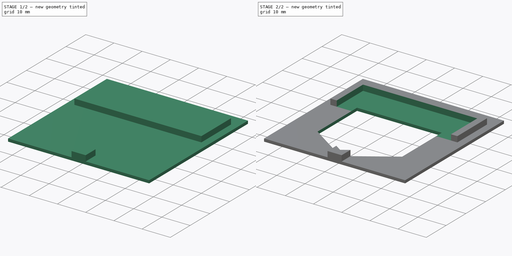
[diagram: build sequence overview — one tinted view per stage of 2, left to right]
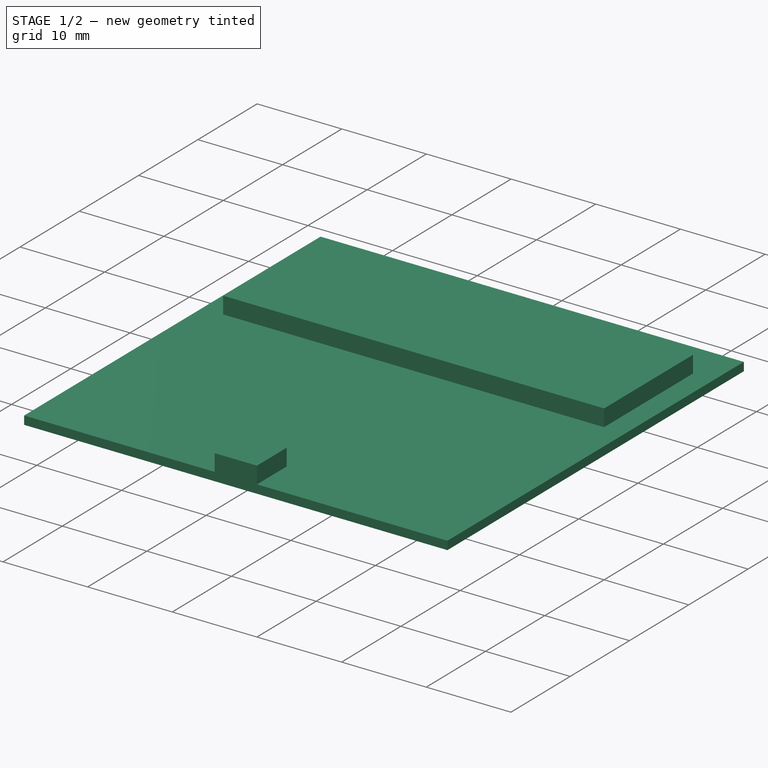
[diagram: stage 1 of 2 — iso view after this stage's code; geometry added in this stage tinted green]
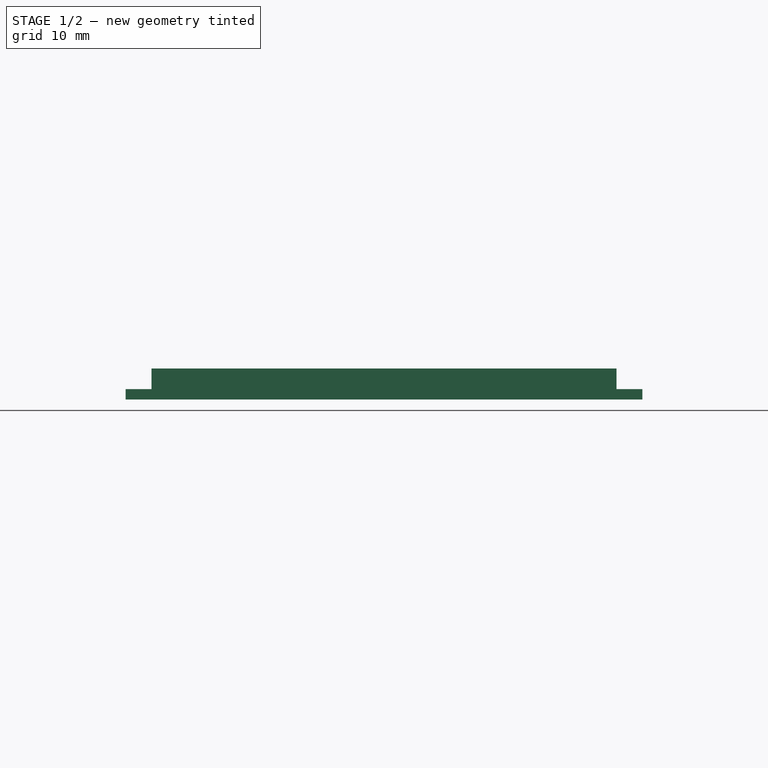
[diagram: stage 1 of 2 — front view after this stage's code; geometry added in this stage tinted green]
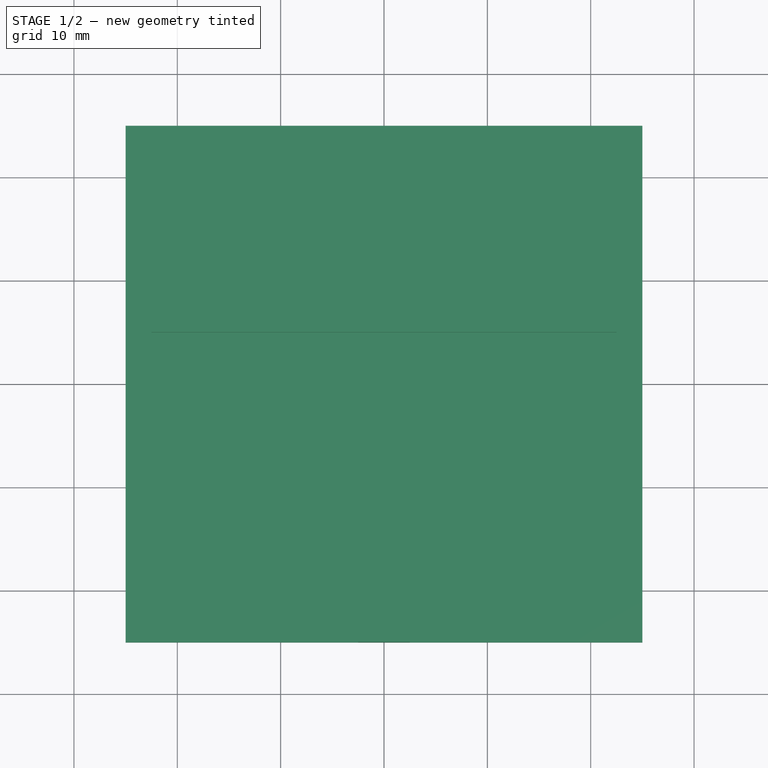
[diagram: stage 1 of 2 — top view after this stage's code; geometry added in this stage tinted green]
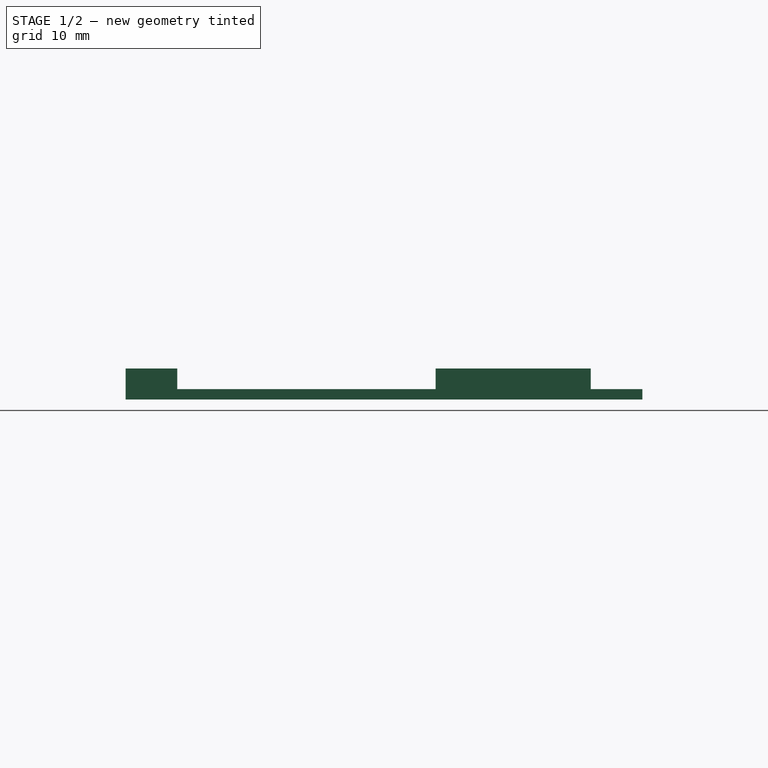
[diagram: stage 1 of 2 — right view after this stage's code; geometry added in this stage tinted green]
FCSTD DOCUMENT  (FreeCAD 0.20R)
Label: sablona
License: All rights reserved
LicenseURL: http://en.wikipedia.org/wiki/All_rights_reserved
objects: Sketcher::SketchObject×4, PartDesign::Pad×2, PartDesign::Pocket×2, PartDesign::Body×1
note: 13 computed .brp shape members not serialized (recipe doc carries the construction recipe); baked Part::Feature solids carry a one-line shape summary decoded from their .brp

FEATURE [Sketcher::SketchObject] Sketch
  FullyConstrained = true
  MapMode = 5
  Support = -> [XY_Plane]
  sketch-geometry (4):
    g0: LineSegment StartX=-25 StartY=25 StartZ=0 EndX=25 EndY=25 EndZ=0
    g1: LineSegment StartX=25 StartY=25 StartZ=0 EndX=25 EndY=-25 EndZ=0
    g2: LineSegment StartX=25 StartY=-25 StartZ=0 EndX=-25 EndY=-25 EndZ=0
    g3: LineSegment StartX=-25 StartY=-25 StartZ=0 EndX=-25 EndY=25 EndZ=0
  constraints (10):
    c: Coincident(g0,g1)
    c: Coincident(g1,g2)
    c: Coincident(g2,g3)
    c: Coincident(g3,g0)
    c: Horizontal(g2)
    c: Vertical(g3)
    c: DistanceX(g0,g0) = 50
    c: DistanceY(g1,g1) = 50
    c: Symmetric(g0,g0,g-2)
    c: Symmetric(g0,g1,g-1)
FEATURE [PartDesign::Pad] Pad
  Direction = (0,0,1)
  Length = 1
  Length2 = 10
  Profile = -> Sketch
  ReferenceAxis = -> Sketch [N_Axis]
  Type = 0
FEATURE [Sketcher::SketchObject] Sketch001
  ExternalGeometry = -> [Pad]
  FullyConstrained = true
  MapMode = 5
  Placement = pos=(0,0,1) rot=(0,0,1;0rad)
  Support = -> [Pad]
  sketch-geometry (8):
    g0: LineSegment StartX=-2.5 StartY=-20 StartZ=0 EndX=2.5 EndY=-20 EndZ=0
    g1: LineSegment StartX=2.5 StartY=-20 StartZ=0 EndX=2.5 EndY=-25 EndZ=0
    g2: LineSegment StartX=2.5 StartY=-25 StartZ=0 EndX=-2.5 EndY=-25 EndZ=0
    g3: LineSegment StartX=-2.5 StartY=-25 StartZ=0 EndX=-2.5 EndY=-20 EndZ=0
    g4: LineSegment StartX=-22.5 StartY=20 StartZ=0 EndX=22.5 EndY=20 EndZ=0
    g5: LineSegment StartX=22.5 StartY=20 StartZ=0 EndX=22.5 EndY=5 EndZ=0
    g6: LineSegment StartX=22.5 StartY=5 StartZ=0 EndX=-22.5 EndY=5 EndZ=0
    g7: LineSegment StartX=-22.5 StartY=5 StartZ=0 EndX=-22.5 EndY=20 EndZ=0
  constraints (22):
    c: Coincident(g0,g1)
    c: Coincident(g1,g2)
    c: Coincident(g2,g3)
    c: Coincident(g3,g0)
    c: Horizontal(g2)
    c: Vertical(g1)
    c: Vertical(g3)
    c: Symmetric(g0,g0,g-2)
    c: DistanceX(g2,g2) = 5
    c: DistanceY(g1,g1) = 5
    c: DistanceY(g-3,g2) = 0
    c: Coincident(g4,g5)
    c: Coincident(g5,g6)
    c: Coincident(g6,g7)
    c: Coincident(g7,g4)
    c: Horizontal(g4)
    c: Vertical(g5)
    c: Vertical(g7)
    c: DistanceX(g4,g4) = 45
    c: DistanceY(g5,g5) = 15
    c: Symmetric(g6,g5,g-2)
    c: DistanceY(g2,g4) = 45
FEATURE [PartDesign::Pad] Pad001
  BaseFeature = -> Pad
  Direction = (0,0,1)
  Length = 2
  Length2 = 10
  Profile = -> Sketch001
  ReferenceAxis = -> Sketch001 [N_Axis]
  Type = 0
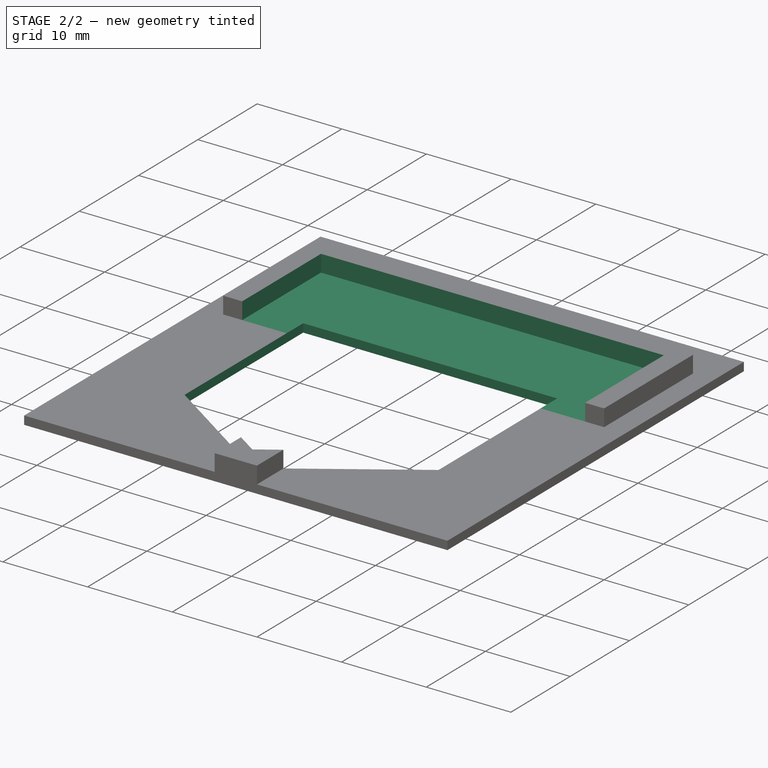
[diagram: stage 2 of 2 — iso view after this stage's code; geometry added in this stage tinted green]
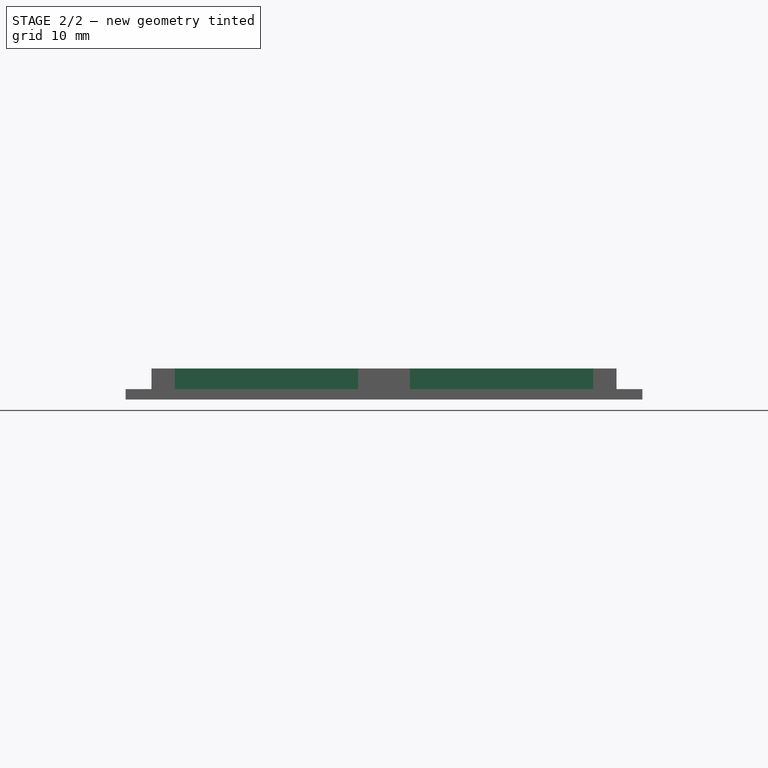
[diagram: stage 2 of 2 — front view after this stage's code; geometry added in this stage tinted green]
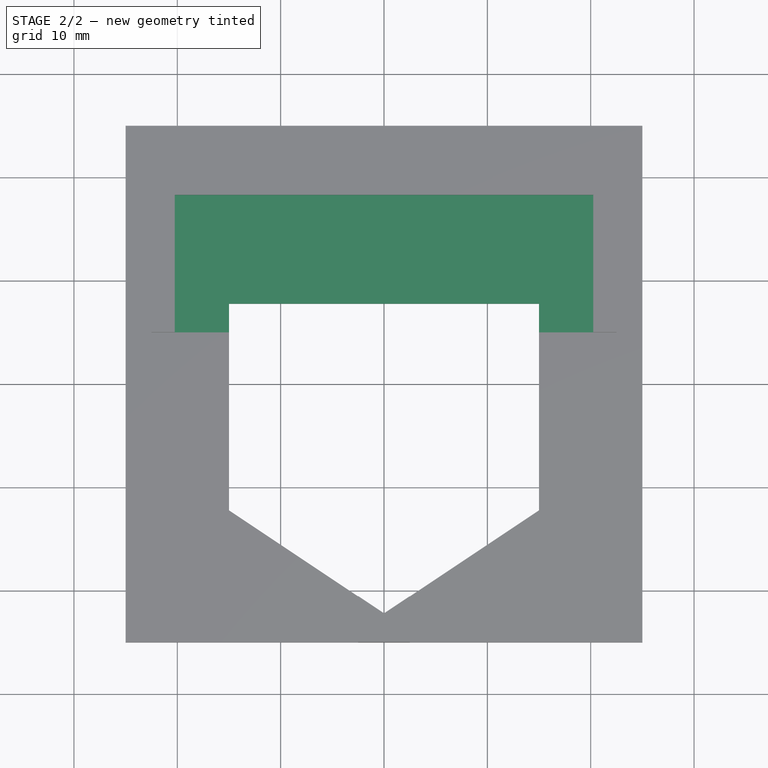
[diagram: stage 2 of 2 — top view after this stage's code; geometry added in this stage tinted green]
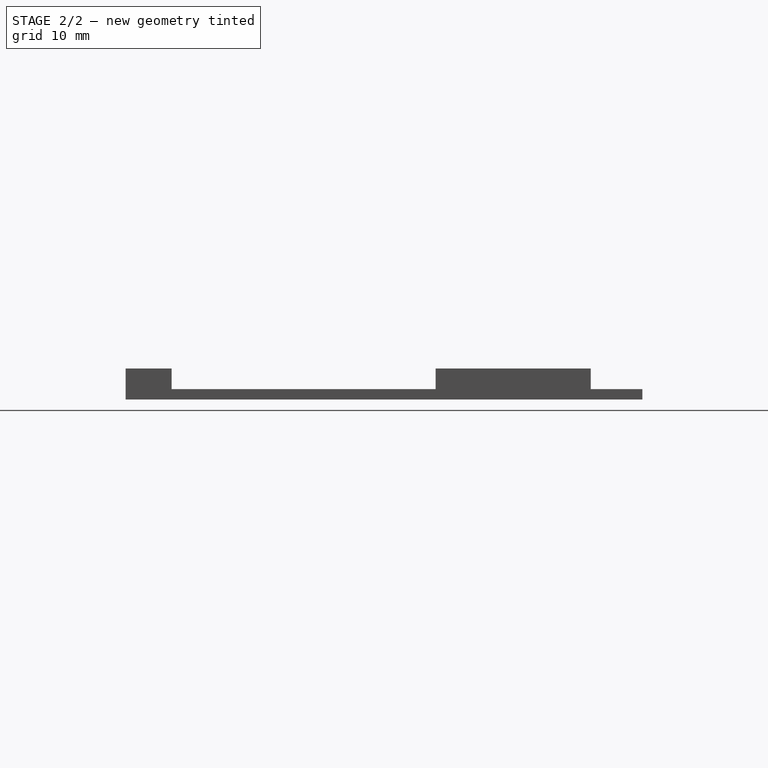
[diagram: stage 2 of 2 — right view after this stage's code; geometry added in this stage tinted green]
FEATURE [Sketcher::SketchObject] Sketch002
  ExternalGeometry = -> [Pad001]
  FullyConstrained = false
  MapMode = 5
  Placement = pos=(0,0,3) rot=(0,0,1;0rad)
  Support = -> [Pad001]
  sketch-geometry (5):
    g0: LineSegment StartX=-20.25 StartY=18.2825 StartZ=0 EndX=20.25 EndY=18.2825 EndZ=0
    g1: LineSegment StartX=20.25 StartY=18.2825 StartZ=0 EndX=20.25 EndY=-1.71755 EndZ=0
    g2: LineSegment StartX=-20.25 StartY=18.2825 StartZ=0 EndX=-20.25 EndY=-1.71755 EndZ=0
    g3: LineSegment StartX=-20.25 StartY=-1.71755 StartZ=0 EndX=0 EndY=-22.2175 EndZ=0
    g4: LineSegment StartX=20.25 StartY=-1.71755 StartZ=0 EndX=0 EndY=-22.2175 EndZ=0
  constraints (12):
    c: Coincident(g1,g0)
    c: Vertical(g1)
    c: Coincident(g2,g0)
    c: DistanceX(g0,g0) = 40.5
    c: Symmetric(g0,g0,g-2)
    c: DistanceY(g1,g1) = 20
    c: Symmetric(g2,g1,g-2)
    c: Coincident(g3,g2)
    c: PointOnObject(g3,g-2)
    c: Coincident(g4,g1)
    c: Coincident(g4,g3)
    c: DistanceY(g3,g0) = 40.5
FEATURE [PartDesign::Pocket] Pocket
  BaseFeature = -> Pad001
  Direction = (0,0,-1)
  Length = 2
  Length2 = 5
  Profile = -> Sketch002
  ReferenceAxis = -> Sketch002 [N_Axis]
  Type = 0
FEATURE [Sketcher::SketchObject] Sketch003
  ExternalGeometry = -> [Pocket]
  FullyConstrained = true
  MapMode = 5
  Placement = pos=(0,0,1) rot=(0,0,1;0rad)
  Support = -> [Pocket]
  sketch-geometry (5):
    g0: LineSegment StartX=-15 StartY=7.78245 StartZ=0 EndX=15 EndY=7.78245 EndZ=0
    g1: LineSegment StartX=15 StartY=7.78245 StartZ=0 EndX=15 EndY=-12.2175 EndZ=0
    g2: LineSegment StartX=-15 StartY=7.78245 StartZ=0 EndX=-15 EndY=-12.2175 EndZ=0
    g3: LineSegment StartX=-15 StartY=-12.2175 StartZ=0 EndX=1.8e-15 EndY=-22.2175 EndZ=0
    g4: LineSegment StartX=15 StartY=-12.2175 StartZ=0 EndX=1.8e-15 EndY=-22.2175 EndZ=0
  constraints (12):
    c: Symmetric(g0,g0,g-2)
    c: DistanceX(g0,g0) = 30
    c: DistanceY(g-3,g0) = 30
    c: Coincident(g1,g0)
    c: Vertical(g1)
    c: Coincident(g2,g0)
    c: Symmetric(g2,g1,g-2)
    c: DistanceY(g1,g0) = 20
    c: Coincident(g3,g2)
    c: Coincident(g3,g-3)
    c: Coincident(g4,g1)
    c: Coincident(g4,g3)
FEATURE [PartDesign::Pocket] Pocket001
  BaseFeature = -> Pocket
  Direction = (0,0,-1)
  Length = 5
  Length2 = 5
  Midplane = true
  Profile = -> Sketch003
  ReferenceAxis = -> Sketch003 [N_Axis]
  Type = 0
  UseCustomVector = true
FEATURE [PartDesign::Body] Body
  Group = -> [Sketch,Pad,Sketch001,Pad001,Sketch002,Pocket,Sketch003,Pocket001]
  Origin = -> Origin
  Tip = -> Pocket001
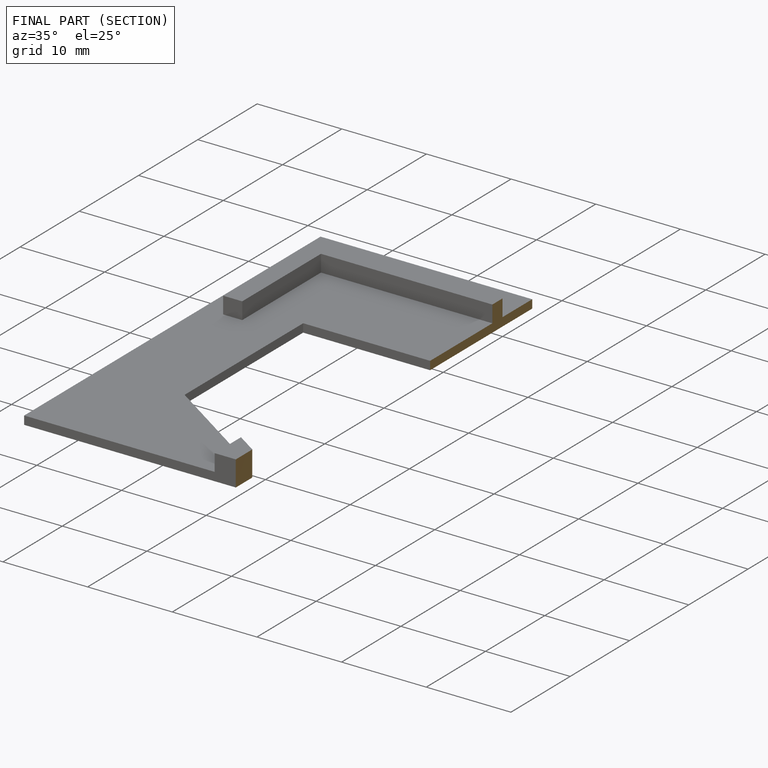
[diagram: finished part — half-section view (interior)]
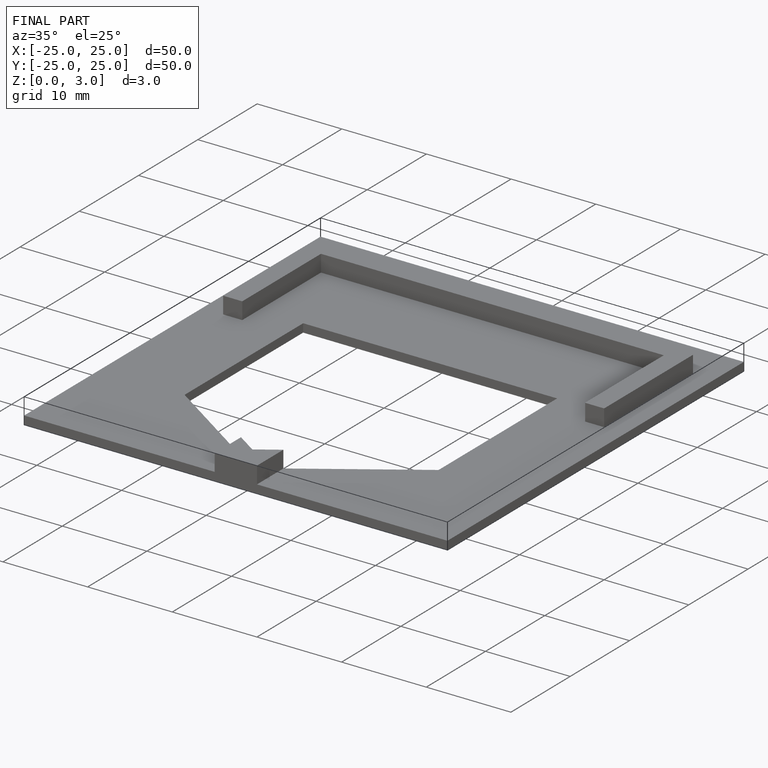
[diagram: finished part — iso view with bounding-box wireframe]
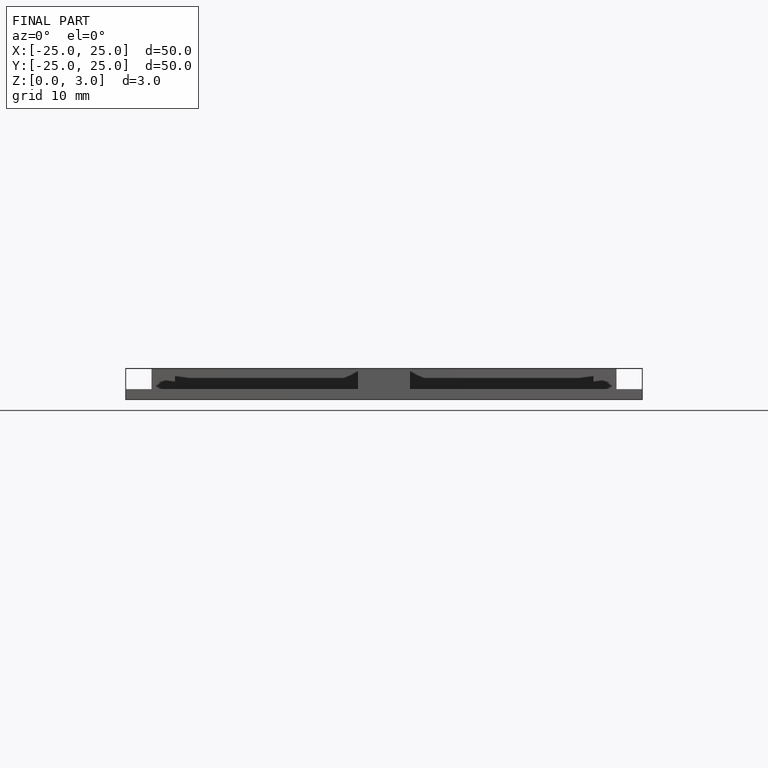
[diagram: finished part — front view with bounding-box wireframe]
